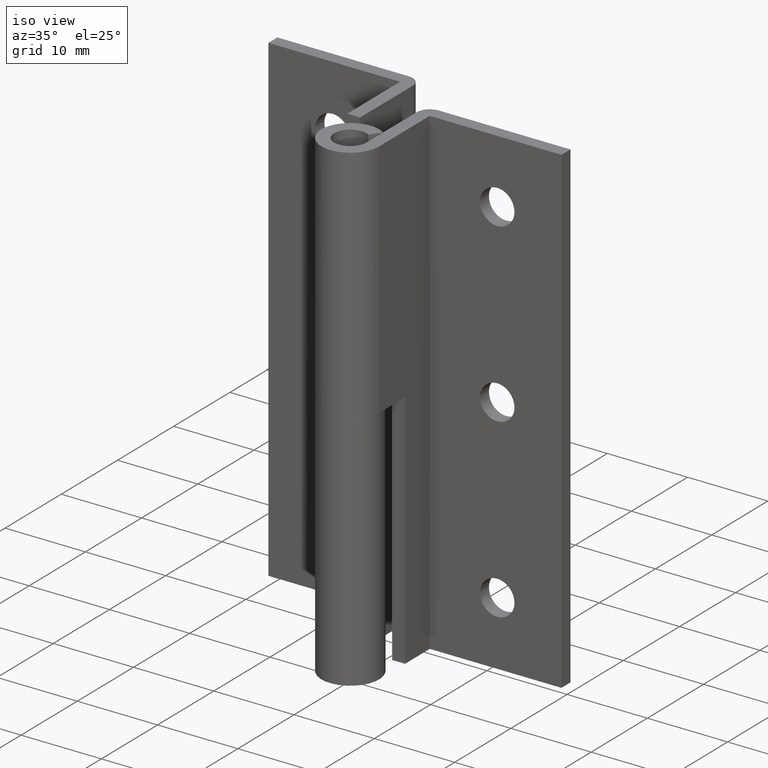
[diagram: clean part render]
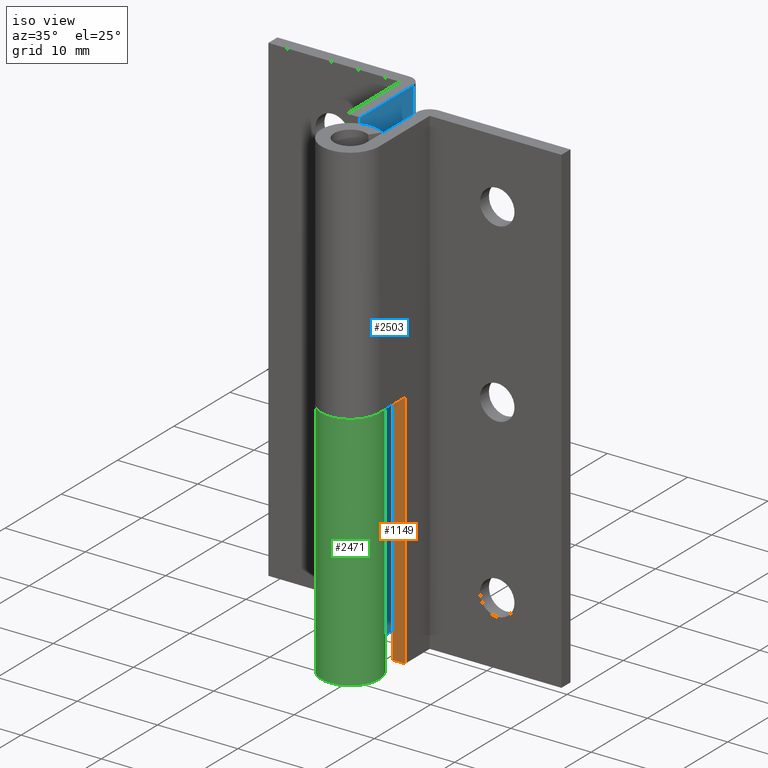
[diagram: same view with three faces highlighted in distinct colors, each labeled with its STEP entity id]
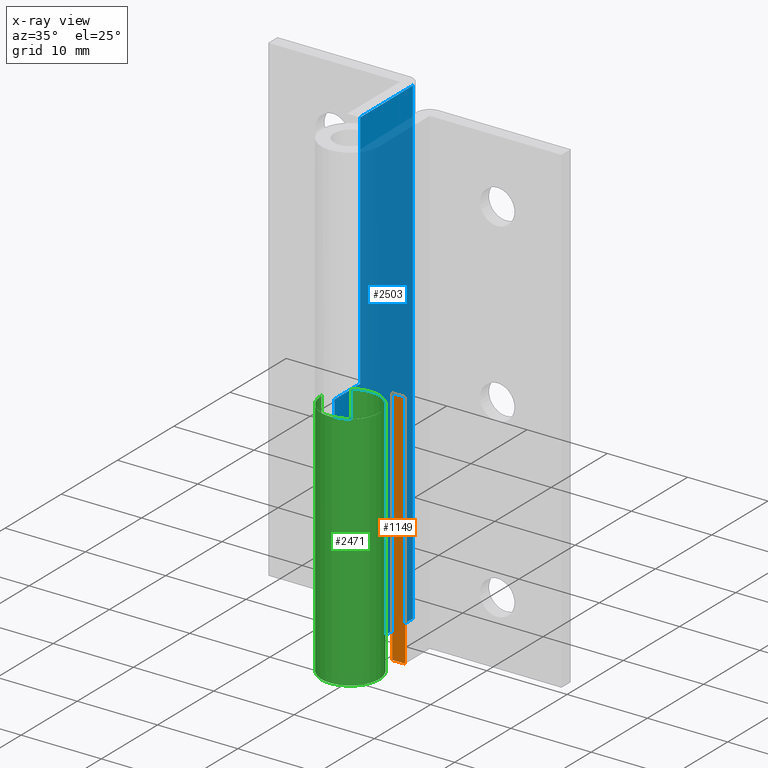
[diagram: x-ray of the same camera — body ghosted, the three highlighted faces saturated]
A machine part, iso view with three faces highlighted in distinct colors.
The next image is the same camera in x-ray (body ghosted, the three faces saturated) — at least one of them is partly hidden behind the body in this view.
Their STEP definitions:

[orange] entity #1149 — the highlighted face is a freeform B-spline surface patch.
#1051=CARTESIAN_POINT('',(2.0,4.599991000000000,30.000008000000101));
#1052=VERTEX_POINT('',#1051);
#1058=CARTESIAN_POINT('',(3.599999999999935,4.599991000000000,30.000008000000101));
#1059=VERTEX_POINT('',#1058);
#1060=CARTESIAN_POINT('',(2.0,4.599991000000000,30.000008000000101));
#1061=CARTESIAN_POINT('',(3.599999999999935,4.599991000000000,30.000008000000101));
#1062=QUASI_UNIFORM_CURVE('',1,(#1060,#1061),.UNSPECIFIED.,.F.,.U.);
#1063=EDGE_CURVE('',#1052,#1059,#1062,.T.);
#1122=CARTESIAN_POINT('',(1.920080008817438,4.599991000000001,-1.498500234273068));
#1123=CARTESIAN_POINT('',(1.920080008817438,4.599991000000001,31.498506893168312));
#1124=CARTESIAN_POINT('',(3.679919919656924,4.599991000000001,-1.498500234273068));
#1125=CARTESIAN_POINT('',(3.679919919656924,4.599991000000000,31.498506893168312));
#1126=B_SPLINE_SURFACE_WITH_KNOTS('',1,1,((#1122,#1124),(#1123,#1125)),.UNSPECIFIED.,.F.,.F.,.U.,(2,2),(2,2),(0.0,32.997007127441371),(0.041708337925747,0.958291624821350),.UNSPECIFIED.);
#1127=CARTESIAN_POINT('',(2.0,4.599991000000000,0.0));
#1128=VERTEX_POINT('',#1127);
#1129=CARTESIAN_POINT('',(2.0,4.599991000000000,30.000008000000101));
#1130=CARTESIAN_POINT('',(2.0,4.599991000000000,0.0));
#1131=QUASI_UNIFORM_CURVE('',1,(#1129,#1130),.UNSPECIFIED.,.F.,.U.);
#1132=EDGE_CURVE('',#1052,#1128,#1131,.T.);
#1133=ORIENTED_EDGE('',*,*,#1132,.T.);
#1134=CARTESIAN_POINT('',(3.599999999999935,4.599991000000000,2.816589E-016));
#1135=VERTEX_POINT('',#1134);
#1136=CARTESIAN_POINT('',(2.0,4.599991000000000,0.0));
#1137=CARTESIAN_POINT('',(3.599999999999935,4.599991000000000,2.816589E-016));
#1138=QUASI_UNIFORM_CURVE('',1,(#1136,#1137),.UNSPECIFIED.,.F.,.U.);
#1139=EDGE_CURVE('',#1128,#1135,#1138,.T.);
#1140=ORIENTED_EDGE('',*,*,#1139,.T.);
#1141=CARTESIAN_POINT('',(3.599999999999935,4.599991000000000,2.816589E-016));
#1142=CARTESIAN_POINT('',(3.599999999999935,4.599991000000000,30.000008000000101));
#1143=QUASI_UNIFORM_CURVE('',1,(#1141,#1142),.UNSPECIFIED.,.F.,.U.);
#1144=EDGE_CURVE('',#1135,#1059,#1143,.T.);
#1145=ORIENTED_EDGE('',*,*,#1144,.T.);
#1146=ORIENTED_EDGE('',*,*,#1063,.F.);
#1147=EDGE_LOOP('',(#1133,#1140,#1145,#1146));
#1148=FACE_OUTER_BOUND('',#1147,.T.);
#1149=ADVANCED_FACE('',(#1148),#1126,.F.);

[blue] entity #2503 — the highlighted face is a freeform B-spline surface patch.
#2081=CARTESIAN_POINT('',(-1.999999999999900,13.999998000000000,60.000008000000101));
#2082=VERTEX_POINT('',#2081);
#2098=CARTESIAN_POINT('',(-1.999999999999900,13.999998000000000,0.0));
#2099=VERTEX_POINT('',#2098);
#2100=CARTESIAN_POINT('',(-1.999999999999900,13.999998000000000,0.0));
#2101=CARTESIAN_POINT('',(-1.999999999999900,13.999998000000000,60.000008000000101));
#2102=QUASI_UNIFORM_CURVE('',1,(#2100,#2101),.UNSPECIFIED.,.F.,.U.);
#2103=EDGE_CURVE('',#2099,#2082,#2102,.T.);
#2133=CARTESIAN_POINT('',(-1.999999999999890,4.599998000000000,30.000008000000101));
#2134=VERTEX_POINT('',#2133);
#2135=CARTESIAN_POINT('',(-1.999999999999900,4.599998000000000,60.000008000000101));
#2136=VERTEX_POINT('',#2135);
#2137=CARTESIAN_POINT('',(-1.999999999999890,4.599998000000000,30.000008000000101));
#2138=CARTESIAN_POINT('',(-1.999999999999900,4.599998000000000,60.000008000000101));
#2139=QUASI_UNIFORM_CURVE('',1,(#2137,#2138),.UNSPECIFIED.,.F.,.U.);
#2140=EDGE_CURVE('',#2134,#2136,#2139,.T.);
#2199=CARTESIAN_POINT('',(-2.0,-2.449213E-016,30.000008000000150));
#2200=VERTEX_POINT('',#2199);
#2220=CARTESIAN_POINT('',(-2.0,-2.449213E-016,30.000008000000150));
#2221=CARTESIAN_POINT('',(-1.999999999999890,4.599998000000000,30.000008000000101));
#2222=QUASI_UNIFORM_CURVE('',1,(#2220,#2221),.UNSPECIFIED.,.F.,.U.);
#2223=EDGE_CURVE('',#2200,#2134,#2222,.T.);
#2247=CARTESIAN_POINT('',(-2.0,-2.449213E-016,0.0));
#2248=VERTEX_POINT('',#2247);
#2249=CARTESIAN_POINT('',(-2.0,-2.449213E-016,0.0));
#2250=CARTESIAN_POINT('',(-1.999999999999900,13.999998000000000,0.0));
#2251=QUASI_UNIFORM_CURVE('',1,(#2249,#2250),.UNSPECIFIED.,.F.,.U.);
#2252=EDGE_CURVE('',#2248,#2099,#2251,.T.);
#2358=CARTESIAN_POINT('',(-1.999999999999900,4.599998000000000,60.000008000000101));
#2359=CARTESIAN_POINT('',(-1.999999999999900,13.999998000000000,60.000008000000101));
#2360=QUASI_UNIFORM_CURVE('',1,(#2358,#2359),.UNSPECIFIED.,.F.,.U.);
#2361=EDGE_CURVE('',#2136,#2082,#2360,.T.);
#2415=CARTESIAN_POINT('',(-2.0,-2.449213E-016,30.000008000000150));
#2416=CARTESIAN_POINT('',(-2.0,-2.449213E-016,0.0));
#2417=QUASI_UNIFORM_CURVE('',1,(#2415,#2416),.UNSPECIFIED.,.F.,.U.);
#2418=EDGE_CURVE('',#2200,#2248,#2417,.T.);
#2490=CARTESIAN_POINT('',(-1.999999999999900,-0.699299872965285,-2.997000283308343));
#2491=CARTESIAN_POINT('',(-1.999999999999900,-0.699299872965285,62.997009892634082));
#2492=CARTESIAN_POINT('',(-1.999999999999900,14.699298248474500,-2.997000283308343));
#2493=CARTESIAN_POINT('',(-1.999999999999900,14.699298248474500,62.997009892634082));
#2494=B_SPLINE_SURFACE_WITH_KNOTS('',1,1,((#2490,#2492),(#2491,#2493)),.UNSPECIFIED.,.F.,.F.,.U.,(2,2),(2,2),(0.0,65.994010175942421),(0.0,15.398598121439781),.UNSPECIFIED.);
#2495=ORIENTED_EDGE('',*,*,#2252,.T.);
#2496=ORIENTED_EDGE('',*,*,#2103,.T.);
#2497=ORIENTED_EDGE('',*,*,#2361,.F.);
#2498=ORIENTED_EDGE('',*,*,#2140,.F.);
#2499=ORIENTED_EDGE('',*,*,#2223,.F.);
#2500=ORIENTED_EDGE('',*,*,#2418,.T.);
#2501=EDGE_LOOP('',(#2495,#2496,#2497,#2498,#2499,#2500));
#2502=FACE_OUTER_BOUND('',#2501,.T.);
#2503=ADVANCED_FACE('',(#2502),#2494,.F.);

[green] entity #2471 — the highlighted face is a freeform B-spline surface patch.
#2169=CARTESIAN_POINT('',(-1.949999999999900,3.026136150274865,30.000008000000150));
#2170=VERTEX_POINT('',#2169);
#2171=CARTESIAN_POINT('',(-3.599999999999935,0.0,30.000008000000101));
#2172=VERTEX_POINT('',#2171);
#2173=CARTESIAN_POINT('',(-1.949999999999903,3.026136150274864,30.000008000000150));
#2174=CARTESIAN_POINT('',(0.401514408116912,4.541419292909098,30.000008000000154));
#2175=CARTESIAN_POINT('',(2.450692877763743,2.637063597806861,30.000008000000150));
#2176=CARTESIAN_POINT('',(4.499871347410573,0.732707902704622,30.000008000000154));
#2177=CARTESIAN_POINT('',(3.160696125855794,-1.723368793961459,30.000008000000150));
#2178=CARTESIAN_POINT('',(1.821520904301013,-4.179445490627541,30.000008000000154));
#2179=CARTESIAN_POINT('',(-0.889239547849495,-3.488445646206979,30.000008000000150));
#2180=CARTESIAN_POINT('',(-3.600000000000001,-2.797445801786417,30.000008000000154));
#2181=CARTESIAN_POINT('',(-3.599999999999935,0.0,30.000008000000101));
#2189=(BOUNDED_CURVE()B_SPLINE_CURVE(2,(#2173,#2174,#2175,#2176,#2177,#2178,#2179,#2180,#2181),.UNSPECIFIED.,.F.,.U.)B_SPLINE_CURVE_WITH_KNOTS((3,2,2,2,3),(0.0,0.250000000000000,0.500000000000000,0.750000000000000,1.0),.UNSPECIFIED.)CURVE()GEOMETRIC_REPRESENTATION_ITEM()RATIONAL_B_SPLINE_CURVE((1.0,0.789623639943026,1.0,0.789623639943026,1.0,0.789623639943026,1.0,0.789623639943026,1.0))REPRESENTATION_ITEM(''));
#2190=EDGE_CURVE('',#2170,#2172,#2189,.T.);
#2275=CARTESIAN_POINT('',(-1.949999999999905,3.026136150274865,0.0));
#2276=VERTEX_POINT('',#2275);
#2282=CARTESIAN_POINT('',(-3.599999999999895,0.0,0.0));
#2283=VERTEX_POINT('',#2282);
#2284=CARTESIAN_POINT('',(-1.949999999999903,3.026136150274864,0.0));
#2285=CARTESIAN_POINT('',(0.401514408116912,4.541419292909098,0.0));
#2286=CARTESIAN_POINT('',(2.450692877763743,2.637063597806861,0.0));
#2287=CARTESIAN_POINT('',(4.499871347410573,0.732707902704622,0.0));
#2288=CARTESIAN_POINT('',(3.160696125855794,-1.723368793961459,0.0));
#2289=CARTESIAN_POINT('',(1.821520904301013,-4.179445490627541,0.0));
#2290=CARTESIAN_POINT('',(-0.889239547849495,-3.488445646206979,0.0));
#2291=CARTESIAN_POINT('',(-3.600000000000001,-2.797445801786417,0.0));
#2292=CARTESIAN_POINT('',(-3.599999999999895,0.0,0.0));
#2300=(BOUNDED_CURVE()B_SPLINE_CURVE(2,(#2284,#2285,#2286,#2287,#2288,#2289,#2290,#2291,#2292),.UNSPECIFIED.,.F.,.U.)B_SPLINE_CURVE_WITH_KNOTS((3,2,2,2,3),(0.0,0.250000000000000,0.500000000000000,0.750000000000000,1.0),.UNSPECIFIED.)CURVE()GEOMETRIC_REPRESENTATION_ITEM()RATIONAL_B_SPLINE_CURVE((1.0,0.789623639943026,1.0,0.789623639943026,1.0,0.789623639943026,1.0,0.789623639943026,1.0))REPRESENTATION_ITEM(''));
#2301=EDGE_CURVE('',#2276,#2283,#2300,.T.);
#2429=CARTESIAN_POINT('',(-1.949999999999900,3.026136150274865,30.000008000000150));
#2430=CARTESIAN_POINT('',(-1.949999999999905,3.026136150274865,0.0));
#2431=QUASI_UNIFORM_CURVE('',1,(#2429,#2430),.UNSPECIFIED.,.F.,.U.);
#2432=EDGE_CURVE('',#2170,#2276,#2431,.T.);
#2439=CARTESIAN_POINT('',(-3.599862923031016,0.031415527794143,30.750008200000160));
#2440=CARTESIAN_POINT('',(-3.599862923031016,0.031415527794143,-0.768750205000003));
#2441=CARTESIAN_POINT('',(-3.638657868975051,-4.414044959772816,30.750008200000167));
#2442=CARTESIAN_POINT('',(-3.638657868975051,-4.414044959772816,-0.768750205000003));
#2443=CARTESIAN_POINT('',(0.717724563901912,-3.527728936634985,30.750008200000160));
#2444=CARTESIAN_POINT('',(0.717724563901912,-3.527728936634985,-0.768750205000003));
#2445=CARTESIAN_POINT('',(5.074106996778874,-2.641412913497154,30.750008200000167));
#2446=CARTESIAN_POINT('',(5.074106996778874,-2.641412913497154,-0.768750205000003));
#2447=CARTESIAN_POINT('',(3.301416267786446,1.435496648130887,30.750008200000160));
#2448=CARTESIAN_POINT('',(3.301416267786446,1.435496648130887,-0.768750205000003));
#2449=CARTESIAN_POINT('',(1.528725538794017,5.512406209758931,30.750008200000167));
#2450=CARTESIAN_POINT('',(1.528725538794017,5.512406209758931,-0.768750205000003));
#2451=CARTESIAN_POINT('',(-2.090530640559383,2.930815866082750,30.750008200000160));
#2452=CARTESIAN_POINT('',(-2.090530640559383,2.930815866082750,-0.768750205000003));
#2460=(BOUNDED_SURFACE()B_SPLINE_SURFACE(1,2,((#2439,#2441,#2443,#2445,#2447,#2449,#2451),(#2440,#2442,#2444,#2446,#2448,#2450,#2452)),.UNSPECIFIED.,.F.,.F.,.U.)B_SPLINE_SURFACE_WITH_KNOTS((2,2),(3,2,2,3),(0.0,31.518758405000170),(0.0,6.868447670853505,13.736895341707010,20.605343012560510),.UNSPECIFIED.)GEOMETRIC_REPRESENTATION_ITEM()RATIONAL_B_SPLINE_SURFACE(((1.0,0.629320391049838,1.0,0.629320391049838,1.0,0.629320391049838,1.0),(1.0,0.629320391049838,1.0,0.629320391049838,1.0,0.629320391049838,1.0)))REPRESENTATION_ITEM('')SURFACE());
#2461=ORIENTED_EDGE('',*,*,#2432,.F.);
#2462=ORIENTED_EDGE('',*,*,#2190,.T.);
#2463=CARTESIAN_POINT('',(-3.599999999999935,0.0,30.000008000000101));
#2464=CARTESIAN_POINT('',(-3.599999999999895,0.0,0.0));
#2465=QUASI_UNIFORM_CURVE('',1,(#2463,#2464),.UNSPECIFIED.,.F.,.U.);
#2466=EDGE_CURVE('',#2172,#2283,#2465,.T.);
#2467=ORIENTED_EDGE('',*,*,#2466,.T.);
#2468=ORIENTED_EDGE('',*,*,#2301,.F.);
#2469=EDGE_LOOP('',(#2461,#2462,#2467,#2468));
#2470=FACE_OUTER_BOUND('',#2469,.T.);
#2471=ADVANCED_FACE('',(#2470),#2460,.T.);